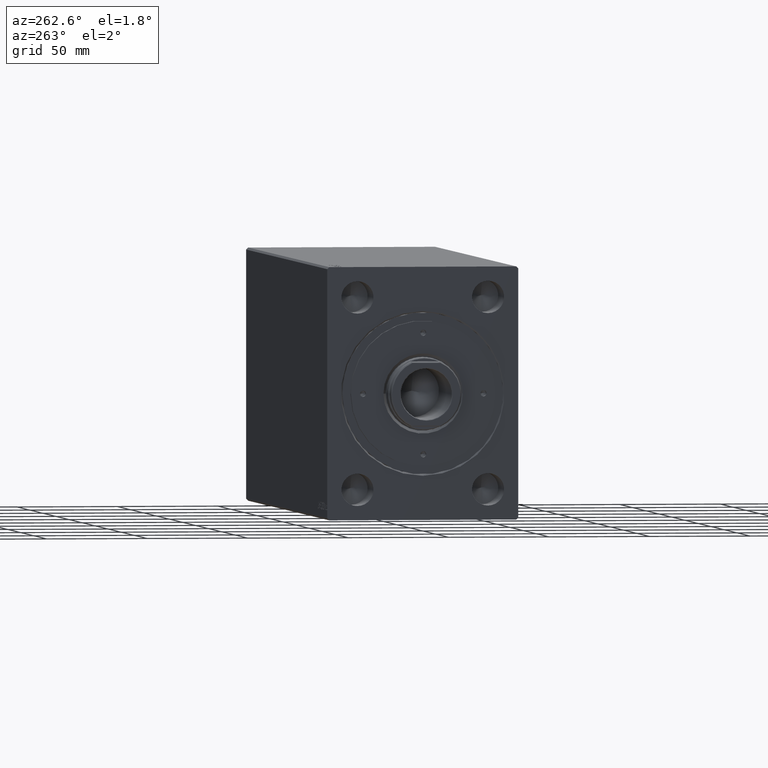
[diagram: clean part render]
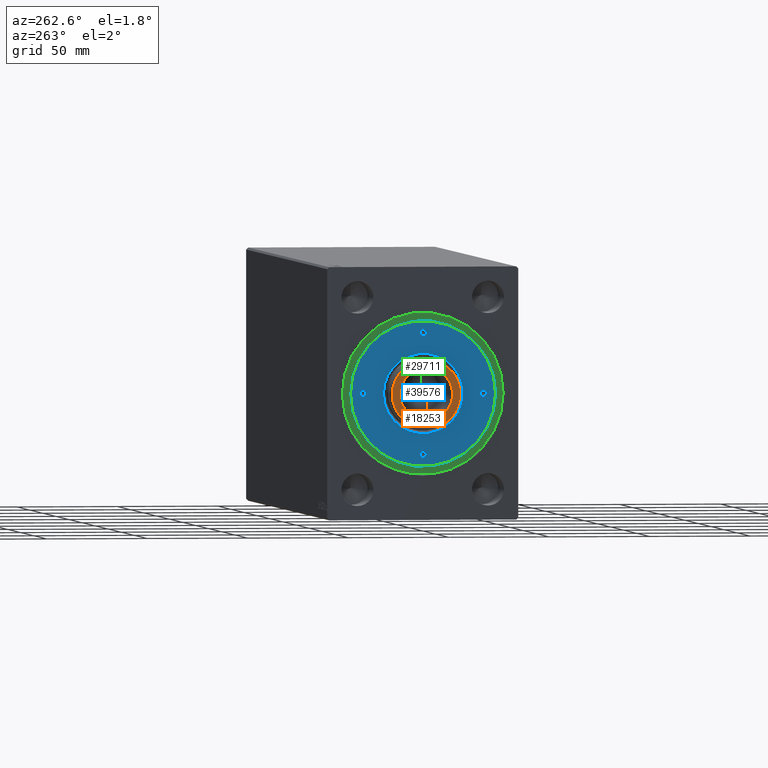
[diagram: same view with three faces highlighted in distinct colors, each labeled with its STEP entity id]
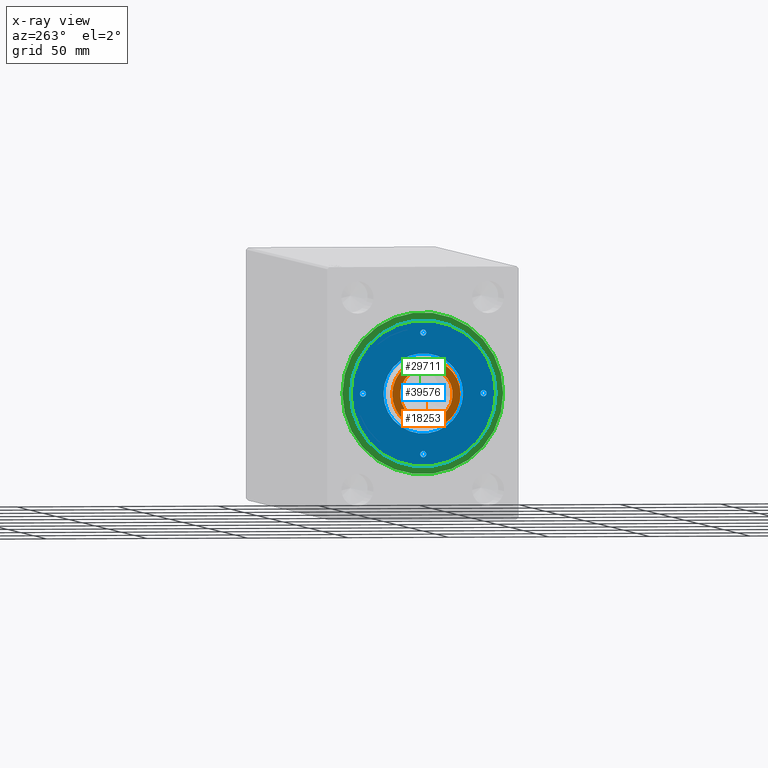
[diagram: x-ray of the same camera — body ghosted, the three highlighted faces saturated]
A machine part, auxiliary view with three faces highlighted in distinct colors.
The next image is the same camera in x-ray (body ghosted, the three faces saturated) — at least one of them is partly hidden behind the body in this view.
Their STEP definitions:

[orange] entity #18253 — the highlighted planar face has unit normal (-1, 0, 0).
#2038 = DIRECTION ( 'NONE',  ( 1.000000000000000000, 0.000000000000000000, -0.000000000000000000 ) ) ;
#2577 = CIRCLE ( 'NONE', #8262, 16.99999999999996092 ) ;
#3767 = ORIENTED_EDGE ( 'NONE', *, *, #23529, .T. ) ;
#3938 = DIRECTION ( 'NONE',  ( 1.000000000000000000, 0.000000000000000000, 0.000000000000000000 ) ) ;
#4149 = CARTESIAN_POINT ( 'NONE',  ( -13.04999999999997584, 1.598164072887293013E-15, 304.2000000000000455 ) ) ;
#4213 = EDGE_CURVE ( 'NONE', #22967, #11016, #21746, .T. ) ;
#5199 = EDGE_LOOP ( 'NONE', ( #22058, #9106, #42211, #3767 ) ) ;
#5277 = EDGE_CURVE ( 'NONE', #9134, #22473, #2577, .T. ) ;
#5333 = EDGE_CURVE ( 'NONE', #14958, #9134, #7259, .T. ) ;
#5425 = AXIS2_PLACEMENT_3D ( 'NONE', #28440, #38891, #21998 ) ;
#5576 = FACE_OUTER_BOUND ( 'NONE', #5199, .T. ) ;
#7259 = LINE ( 'NONE', #37047, #34576 ) ;
#7382 = CARTESIAN_POINT ( 'NONE',  ( 15.49999999999997158, -6.982120021884429484, 304.2000000000000455 ) ) ;
#8262 = AXIS2_PLACEMENT_3D ( 'NONE', #20826, #10810, #3938 ) ;
#8926 = FACE_BOUND ( 'NONE', #23416, .T. ) ;
#9106 = ORIENTED_EDGE ( 'NONE', *, *, #5277, .T. ) ;
#9134 = VERTEX_POINT ( 'NONE', #17526 ) ;
#10810 = DIRECTION ( 'NONE',  ( 0.000000000000000000, 0.000000000000000000, 1.000000000000000000 ) ) ;
#11016 = VERTEX_POINT ( 'NONE', #31206 ) ;
#11491 = DIRECTION ( 'NONE',  ( 1.000000000000000000, 0.000000000000000000, 0.000000000000000000 ) ) ;
#12713 = EDGE_CURVE ( 'NONE', #11016, #22967, #35401, .T. ) ;
#14275 = AXIS2_PLACEMENT_3D ( 'NONE', #42523, #32479, #2038 ) ;
#14958 = VERTEX_POINT ( 'NONE', #40128 ) ;
#16216 = AXIS2_PLACEMENT_3D ( 'NONE', #35053, #21074, #11491 ) ;
#17526 = CARTESIAN_POINT ( 'NONE',  ( -15.49999999999997158, -6.982120021884429484, 304.2000000000000455 ) ) ;
#18253 = ADVANCED_FACE ( 'NONE', ( #5576, #8926 ), #28933, .T. ) ;
#20147 = DIRECTION ( 'NONE',  ( 0.000000000000000000, -1.000000000000000000, 0.000000000000000000 ) ) ;
#20826 = CARTESIAN_POINT ( 'NONE',  ( 0.000000000000000000, 0.000000000000000000, 304.2000000000000455 ) ) ;
#21074 = DIRECTION ( 'NONE',  ( -0.000000000000000000, -0.000000000000000000, -1.000000000000000000 ) ) ;
#21557 = EDGE_CURVE ( 'NONE', #22473, #35350, #28519, .T. ) ;
#21746 = CIRCLE ( 'NONE', #5425, 13.04999999999997584 ) ;
#21998 = DIRECTION ( 'NONE',  ( 1.000000000000000000, 0.000000000000000000, 0.000000000000000000 ) ) ;
#22058 = ORIENTED_EDGE ( 'NONE', *, *, #5333, .T. ) ;
#22473 = VERTEX_POINT ( 'NONE', #7382 ) ;
#22967 = VERTEX_POINT ( 'NONE', #4149 ) ;
#23416 = EDGE_LOOP ( 'NONE', ( #30978, #29337 ) ) ;
#23529 = EDGE_CURVE ( 'NONE', #35350, #14958, #26330, .T. ) ;
#24268 = CARTESIAN_POINT ( 'NONE',  ( 0.000000000000000000, 0.000000000000000000, 304.2000000000000455 ) ) ;
#26330 = CIRCLE ( 'NONE', #30609, 16.99999999999996092 ) ;
#28440 = CARTESIAN_POINT ( 'NONE',  ( 0.000000000000000000, 0.000000000000000000, 304.2000000000000455 ) ) ;
#28519 = LINE ( 'NONE', #39403, #40483 ) ;
#28933 = PLANE ( 'NONE',  #14275 ) ;
#29337 = ORIENTED_EDGE ( 'NONE', *, *, #4213, .T. ) ;
#30487 = DIRECTION ( 'NONE',  ( 1.000000000000000000, 0.000000000000000000, 0.000000000000000000 ) ) ;
#30609 = AXIS2_PLACEMENT_3D ( 'NONE', #24268, #34926, #30487 ) ;
#30978 = ORIENTED_EDGE ( 'NONE', *, *, #12713, .T. ) ;
#31206 = CARTESIAN_POINT ( 'NONE',  ( 13.04999999999997584, 0.000000000000000000, 304.2000000000000455 ) ) ;
#32479 = DIRECTION ( 'NONE',  ( 0.000000000000000000, 0.000000000000000000, 1.000000000000000000 ) ) ;
#34576 = VECTOR ( 'NONE', #20147, 1000.000000000000000 ) ;
#34926 = DIRECTION ( 'NONE',  ( 0.000000000000000000, 0.000000000000000000, 1.000000000000000000 ) ) ;
#35053 = CARTESIAN_POINT ( 'NONE',  ( 0.000000000000000000, 0.000000000000000000, 304.2000000000000455 ) ) ;
#35350 = VERTEX_POINT ( 'NONE', #38391 ) ;
#35401 = CIRCLE ( 'NONE', #16216, 13.04999999999997584 ) ;
#37047 = CARTESIAN_POINT ( 'NONE',  ( -15.49999999999997158, -7.088723439378881608, 304.2000000000000455 ) ) ;
#38391 = CARTESIAN_POINT ( 'NONE',  ( 15.49999999999997158, 6.982120021884429484, 304.2000000000000455 ) ) ;
#38891 = DIRECTION ( 'NONE',  ( -0.000000000000000000, -0.000000000000000000, -1.000000000000000000 ) ) ;
#39403 = CARTESIAN_POINT ( 'NONE',  ( 15.49999999999997158, 7.088723439378881608, 304.2000000000000455 ) ) ;
#40128 = CARTESIAN_POINT ( 'NONE',  ( -15.49999999999997158, 6.982120021884430372, 304.2000000000000455 ) ) ;
#40483 = VECTOR ( 'NONE', #42119, 1000.000000000000000 ) ;
#42119 = DIRECTION ( 'NONE',  ( 0.000000000000000000, 1.000000000000000000, 0.000000000000000000 ) ) ;
#42211 = ORIENTED_EDGE ( 'NONE', *, *, #21557, .T. ) ;
#42523 = CARTESIAN_POINT ( 'NONE',  ( 0.000000000000000000, 0.000000000000000000, 304.2000000000000455 ) ) ;

[blue] entity #39576 — the highlighted planar face has unit normal (-1, 0, 0).
#139 = CARTESIAN_POINT ( 'NONE',  ( -30.00000000000000000, 0.000000000000000000, 13.99999999999999822 ) ) ;
#222 = VERTEX_POINT ( 'NONE', #30130 ) ;
#395 = EDGE_CURVE ( 'NONE', #14597, #20715, #5288, .T. ) ;
#437 = EDGE_CURVE ( 'NONE', #30419, #5088, #17373, .T. ) ;
#1590 = CARTESIAN_POINT ( 'NONE',  ( 0.000000000000000000, 30.00000000000000000, 13.99999999999999822 ) ) ;
#1654 = DIRECTION ( 'NONE',  ( 1.000000000000000000, 0.000000000000000000, 0.000000000000000000 ) ) ;
#1889 = DIRECTION ( 'NONE',  ( 1.000000000000000000, 0.000000000000000000, 0.000000000000000000 ) ) ;
#2609 = CIRCLE ( 'NONE', #18915, 1.499999999999996891 ) ;
#2789 = EDGE_CURVE ( 'NONE', #34170, #27147, #40870, .T. ) ;
#2872 = VERTEX_POINT ( 'NONE', #5465 ) ;
#3241 = CIRCLE ( 'NONE', #8228, 1.499999999999996891 ) ;
#4128 = FACE_BOUND ( 'NONE', #17101, .T. ) ;
#4774 = CARTESIAN_POINT ( 'NONE',  ( 0.000000000000000000, -30.00000000000000000, 13.99999999999999822 ) ) ;
#4810 = EDGE_CURVE ( 'NONE', #41311, #222, #2609, .T. ) ;
#5088 = VERTEX_POINT ( 'NONE', #21521 ) ;
#5202 = CARTESIAN_POINT ( 'NONE',  ( 0.000000000000000000, 0.000000000000000000, 13.99999999999999822 ) ) ;
#5288 = CIRCLE ( 'NONE', #42931, 1.499999999999994449 ) ;
#5465 = CARTESIAN_POINT ( 'NONE',  ( -1.499999999999996891, -30.00000000000000000, 13.99999999999999822 ) ) ;
#5606 = CIRCLE ( 'NONE', #24096, 1.499999999999997780 ) ;
#5743 = CARTESIAN_POINT ( 'NONE',  ( -19.79999999999997229, 2.424800662311756249E-15, 13.99999999999999822 ) ) ;
#6786 = FACE_OUTER_BOUND ( 'NONE', #9928, .T. ) ;
#6992 = DIRECTION ( 'NONE',  ( 1.000000000000000000, 0.000000000000000000, 0.000000000000000000 ) ) ;
#7203 = EDGE_LOOP ( 'NONE', ( #8140, #17368 ) ) ;
#8112 = DIRECTION ( 'NONE',  ( 1.000000000000000000, 0.000000000000000000, -0.000000000000000000 ) ) ;
#8140 = ORIENTED_EDGE ( 'NONE', *, *, #4810, .F. ) ;
#8228 = AXIS2_PLACEMENT_3D ( 'NONE', #1590, #11589, #18475 ) ;
#8818 = DIRECTION ( 'NONE',  ( 1.000000000000000000, 0.000000000000000000, 0.000000000000000000 ) ) ;
#9037 = DIRECTION ( 'NONE',  ( -0.000000000000000000, -0.000000000000000000, 1.000000000000000000 ) ) ;
#9077 = ORIENTED_EDGE ( 'NONE', *, *, #437, .F. ) ;
#9407 = CARTESIAN_POINT ( 'NONE',  ( -36.00000000000000000, 0.000000000000000000, 13.99999999999999822 ) ) ;
#9663 = EDGE_CURVE ( 'NONE', #5088, #30419, #5606, .T. ) ;
#9928 = EDGE_LOOP ( 'NONE', ( #20618, #29112 ) ) ;
#10399 = DIRECTION ( 'NONE',  ( 1.000000000000000000, 0.000000000000000000, 0.000000000000000000 ) ) ;
#10870 = EDGE_LOOP ( 'NONE', ( #38356, #15775 ) ) ;
#10914 = ORIENTED_EDGE ( 'NONE', *, *, #9663, .F. ) ;
#11025 = AXIS2_PLACEMENT_3D ( 'NONE', #22539, #39227, #1889 ) ;
#11589 = DIRECTION ( 'NONE',  ( -0.000000000000000000, -0.000000000000000000, 1.000000000000000000 ) ) ;
#11883 = DIRECTION ( 'NONE',  ( 0.000000000000000000, 0.000000000000000000, 1.000000000000000000 ) ) ;
#12439 = AXIS2_PLACEMENT_3D ( 'NONE', #27685, #17255, #34597 ) ;
#12989 = AXIS2_PLACEMENT_3D ( 'NONE', #36023, #25793, #25575 ) ;
#13164 = DIRECTION ( 'NONE',  ( -0.000000000000000000, -0.000000000000000000, 1.000000000000000000 ) ) ;
#13611 = CARTESIAN_POINT ( 'NONE',  ( 1.499999999999996891, 30.00000000000000000, 13.99999999999999822 ) ) ;
#13706 = DIRECTION ( 'NONE',  ( -0.000000000000000000, -0.000000000000000000, 1.000000000000000000 ) ) ;
#14597 = VERTEX_POINT ( 'NONE', #41614 ) ;
#15151 = CARTESIAN_POINT ( 'NONE',  ( 19.79999999999997229, 0.000000000000000000, 13.99999999999999822 ) ) ;
#15153 = EDGE_LOOP ( 'NONE', ( #15554, #15338 ) ) ;
#15338 = ORIENTED_EDGE ( 'NONE', *, *, #42866, .F. ) ;
#15554 = ORIENTED_EDGE ( 'NONE', *, *, #395, .F. ) ;
#15775 = ORIENTED_EDGE ( 'NONE', *, *, #29175, .T. ) ;
#16420 = VERTEX_POINT ( 'NONE', #15151 ) ;
#17101 = EDGE_LOOP ( 'NONE', ( #40051, #29385 ) ) ;
#17255 = DIRECTION ( 'NONE',  ( 0.000000000000000000, 0.000000000000000000, 1.000000000000000000 ) ) ;
#17367 = CARTESIAN_POINT ( 'NONE',  ( 0.000000000000000000, 30.00000000000000000, 13.99999999999999822 ) ) ;
#17368 = ORIENTED_EDGE ( 'NONE', *, *, #41369, .F. ) ;
#17373 = CIRCLE ( 'NONE', #11025, 1.499999999999997780 ) ;
#17593 = VERTEX_POINT ( 'NONE', #5743 ) ;
#17800 = DIRECTION ( 'NONE',  ( 1.000000000000000000, 0.000000000000000000, 0.000000000000000000 ) ) ;
#18332 = DIRECTION ( 'NONE',  ( -0.000000000000000000, -0.000000000000000000, 1.000000000000000000 ) ) ;
#18475 = DIRECTION ( 'NONE',  ( 1.000000000000000000, 0.000000000000000000, 0.000000000000000000 ) ) ;
#18878 = AXIS2_PLACEMENT_3D ( 'NONE', #23019, #9037, #8818 ) ;
#18915 = AXIS2_PLACEMENT_3D ( 'NONE', #17367, #27802, #17800 ) ;
#19505 = CIRCLE ( 'NONE', #34443, 1.499999999999996891 ) ;
#20618 = ORIENTED_EDGE ( 'NONE', *, *, #40381, .T. ) ;
#20715 = VERTEX_POINT ( 'NONE', #20992 ) ;
#20992 = CARTESIAN_POINT ( 'NONE',  ( 28.50000000000000355, 1.836970198721022785E-16, 13.99999999999999822 ) ) ;
#21023 = FACE_BOUND ( 'NONE', #7203, .T. ) ;
#21521 = CARTESIAN_POINT ( 'NONE',  ( -31.50000000000000000, 1.836970198721022785E-16, 13.99999999999999822 ) ) ;
#22539 = CARTESIAN_POINT ( 'NONE',  ( -30.00000000000000000, 0.000000000000000000, 13.99999999999999822 ) ) ;
#22900 = CIRCLE ( 'NONE', #24361, 1.499999999999996891 ) ;
#23019 = CARTESIAN_POINT ( 'NONE',  ( 30.00000000000000000, 0.000000000000000000, 13.99999999999999822 ) ) ;
#23439 = CARTESIAN_POINT ( 'NONE',  ( 0.000000000000000000, 0.000000000000000000, 13.99999999999999822 ) ) ;
#23682 = FACE_BOUND ( 'NONE', #10870, .T. ) ;
#24096 = AXIS2_PLACEMENT_3D ( 'NONE', #139, #13706, #30142 ) ;
#24361 = AXIS2_PLACEMENT_3D ( 'NONE', #30499, #13164, #40293 ) ;
#24619 = CARTESIAN_POINT ( 'NONE',  ( 0.000000000000000000, 0.000000000000000000, 13.99999999999999822 ) ) ;
#25166 = EDGE_CURVE ( 'NONE', #16420, #17593, #34924, .T. ) ;
#25449 = DIRECTION ( 'NONE',  ( 1.000000000000000000, 0.000000000000000000, 0.000000000000000000 ) ) ;
#25575 = DIRECTION ( 'NONE',  ( 1.000000000000000000, 0.000000000000000000, 0.000000000000000000 ) ) ;
#25793 = DIRECTION ( 'NONE',  ( -0.000000000000000000, -0.000000000000000000, -1.000000000000000000 ) ) ;
#25923 = AXIS2_PLACEMENT_3D ( 'NONE', #5202, #11883, #8112 ) ;
#27147 = VERTEX_POINT ( 'NONE', #9407 ) ;
#27685 = CARTESIAN_POINT ( 'NONE',  ( 0.000000000000000000, 0.000000000000000000, 13.99999999999999822 ) ) ;
#27802 = DIRECTION ( 'NONE',  ( -0.000000000000000000, -0.000000000000000000, 1.000000000000000000 ) ) ;
#28086 = AXIS2_PLACEMENT_3D ( 'NONE', #24619, #37956, #10399 ) ;
#28620 = VERTEX_POINT ( 'NONE', #37454 ) ;
#28978 = EDGE_CURVE ( 'NONE', #2872, #28620, #22900, .T. ) ;
#29112 = ORIENTED_EDGE ( 'NONE', *, *, #2789, .T. ) ;
#29175 = EDGE_CURVE ( 'NONE', #17593, #16420, #39953, .T. ) ;
#29385 = ORIENTED_EDGE ( 'NONE', *, *, #28978, .F. ) ;
#30130 = CARTESIAN_POINT ( 'NONE',  ( -1.499999999999996891, 30.00000000000000000, 13.99999999999999822 ) ) ;
#30142 = DIRECTION ( 'NONE',  ( 1.000000000000000000, 0.000000000000000000, 0.000000000000000000 ) ) ;
#30419 = VERTEX_POINT ( 'NONE', #35713 ) ;
#30499 = CARTESIAN_POINT ( 'NONE',  ( 0.000000000000000000, -30.00000000000000000, 13.99999999999999822 ) ) ;
#31235 = PLANE ( 'NONE',  #25923 ) ;
#32324 = CARTESIAN_POINT ( 'NONE',  ( 30.00000000000000000, 0.000000000000000000, 13.99999999999999822 ) ) ;
#32778 = AXIS2_PLACEMENT_3D ( 'NONE', #23439, #35153, #6992 ) ;
#33727 = CIRCLE ( 'NONE', #12439, 36.00000000000000000 ) ;
#34170 = VERTEX_POINT ( 'NONE', #41798 ) ;
#34443 = AXIS2_PLACEMENT_3D ( 'NONE', #4774, #18332, #1654 ) ;
#34587 = FACE_BOUND ( 'NONE', #15153, .T. ) ;
#34597 = DIRECTION ( 'NONE',  ( 1.000000000000000000, 0.000000000000000000, 0.000000000000000000 ) ) ;
#34924 = CIRCLE ( 'NONE', #32778, 19.79999999999997229 ) ;
#35153 = DIRECTION ( 'NONE',  ( -0.000000000000000000, -0.000000000000000000, -1.000000000000000000 ) ) ;
#35451 = DIRECTION ( 'NONE',  ( -0.000000000000000000, -0.000000000000000000, 1.000000000000000000 ) ) ;
#35713 = CARTESIAN_POINT ( 'NONE',  ( -28.50000000000000000, 0.000000000000000000, 13.99999999999999822 ) ) ;
#35925 = CIRCLE ( 'NONE', #18878, 1.499999999999994449 ) ;
#36023 = CARTESIAN_POINT ( 'NONE',  ( 0.000000000000000000, 0.000000000000000000, 13.99999999999999822 ) ) ;
#37454 = CARTESIAN_POINT ( 'NONE',  ( 1.499999999999996891, -30.00000000000000000, 13.99999999999999822 ) ) ;
#37627 = EDGE_LOOP ( 'NONE', ( #9077, #10914 ) ) ;
#37956 = DIRECTION ( 'NONE',  ( 0.000000000000000000, 0.000000000000000000, 1.000000000000000000 ) ) ;
#38356 = ORIENTED_EDGE ( 'NONE', *, *, #25166, .T. ) ;
#39227 = DIRECTION ( 'NONE',  ( -0.000000000000000000, -0.000000000000000000, 1.000000000000000000 ) ) ;
#39576 = ADVANCED_FACE ( 'NONE', ( #40597, #21023, #34587, #4128, #23682, #6786 ), #31235, .T. ) ;
#39671 = EDGE_CURVE ( 'NONE', #28620, #2872, #19505, .T. ) ;
#39953 = CIRCLE ( 'NONE', #12989, 19.79999999999997229 ) ;
#40051 = ORIENTED_EDGE ( 'NONE', *, *, #39671, .F. ) ;
#40293 = DIRECTION ( 'NONE',  ( 1.000000000000000000, 0.000000000000000000, 0.000000000000000000 ) ) ;
#40381 = EDGE_CURVE ( 'NONE', #27147, #34170, #33727, .T. ) ;
#40597 = FACE_BOUND ( 'NONE', #37627, .T. ) ;
#40870 = CIRCLE ( 'NONE', #28086, 36.00000000000000000 ) ;
#41311 = VERTEX_POINT ( 'NONE', #13611 ) ;
#41369 = EDGE_CURVE ( 'NONE', #222, #41311, #3241, .T. ) ;
#41614 = CARTESIAN_POINT ( 'NONE',  ( 31.49999999999999289, 0.000000000000000000, 13.99999999999999822 ) ) ;
#41798 = CARTESIAN_POINT ( 'NONE',  ( 36.00000000000000000, 4.408728476930470856E-15, 13.99999999999999822 ) ) ;
#42866 = EDGE_CURVE ( 'NONE', #20715, #14597, #35925, .T. ) ;
#42931 = AXIS2_PLACEMENT_3D ( 'NONE', #32324, #35451, #25449 ) ;

[green] entity #29711 — the highlighted planar face has unit normal (-1, 0, 0).
#1045 = EDGE_CURVE ( 'NONE', #18067, #39290, #8889, .T. ) ;
#4910 = CARTESIAN_POINT ( 'NONE',  ( 0.000000000000000000, 0.000000000000000000, 12.19999999999999929 ) ) ;
#6190 = EDGE_LOOP ( 'NONE', ( #10163, #20327 ) ) ;
#8257 = EDGE_CURVE ( 'NONE', #13403, #20871, #42619, .T. ) ;
#8814 = CARTESIAN_POINT ( 'NONE',  ( 40.00000000000000000, 4.898587196589413026E-15, 12.19999999999999929 ) ) ;
#8889 = CIRCLE ( 'NONE', #29444, 40.00000000000000000 ) ;
#10163 = ORIENTED_EDGE ( 'NONE', *, *, #22558, .F. ) ;
#10933 = FACE_OUTER_BOUND ( 'NONE', #36032, .T. ) ;
#12742 = DIRECTION ( 'NONE',  ( 0.000000000000000000, 0.000000000000000000, 1.000000000000000000 ) ) ;
#13403 = VERTEX_POINT ( 'NONE', #27836 ) ;
#14056 = ORIENTED_EDGE ( 'NONE', *, *, #1045, .T. ) ;
#14272 = CIRCLE ( 'NONE', #34137, 36.00000000000000000 ) ;
#14487 = DIRECTION ( 'NONE',  ( 1.000000000000000000, 0.000000000000000000, 0.000000000000000000 ) ) ;
#15138 = DIRECTION ( 'NONE',  ( 0.000000000000000000, 0.000000000000000000, 1.000000000000000000 ) ) ;
#17825 = PLANE ( 'NONE',  #37139 ) ;
#17935 = CIRCLE ( 'NONE', #42818, 40.00000000000000000 ) ;
#18040 = DIRECTION ( 'NONE',  ( 0.000000000000000000, 0.000000000000000000, 1.000000000000000000 ) ) ;
#18067 = VERTEX_POINT ( 'NONE', #41874 ) ;
#19854 = CARTESIAN_POINT ( 'NONE',  ( 0.000000000000000000, 0.000000000000000000, 12.19999999999999929 ) ) ;
#20317 = DIRECTION ( 'NONE',  ( 0.000000000000000000, 0.000000000000000000, 1.000000000000000000 ) ) ;
#20327 = ORIENTED_EDGE ( 'NONE', *, *, #8257, .F. ) ;
#20871 = VERTEX_POINT ( 'NONE', #30265 ) ;
#20943 = DIRECTION ( 'NONE',  ( 0.000000000000000000, 0.000000000000000000, 1.000000000000000000 ) ) ;
#22558 = EDGE_CURVE ( 'NONE', #20871, #13403, #14272, .T. ) ;
#24499 = CARTESIAN_POINT ( 'NONE',  ( 0.000000000000000000, 0.000000000000000000, 12.19999999999999929 ) ) ;
#27836 = CARTESIAN_POINT ( 'NONE',  ( 36.00000000000000000, 4.408728476930470856E-15, 12.19999999999999929 ) ) ;
#28133 = EDGE_CURVE ( 'NONE', #39290, #18067, #17935, .T. ) ;
#28249 = CARTESIAN_POINT ( 'NONE',  ( 0.000000000000000000, 0.000000000000000000, 12.19999999999999929 ) ) ;
#29092 = AXIS2_PLACEMENT_3D ( 'NONE', #19854, #12742, #39433 ) ;
#29444 = AXIS2_PLACEMENT_3D ( 'NONE', #28249, #20943, #14487 ) ;
#29711 = ADVANCED_FACE ( 'NONE', ( #41426, #10933 ), #17825, .T. ) ;
#30081 = DIRECTION ( 'NONE',  ( 1.000000000000000000, 0.000000000000000000, 0.000000000000000000 ) ) ;
#30265 = CARTESIAN_POINT ( 'NONE',  ( -36.00000000000000000, 0.000000000000000000, 12.19999999999999929 ) ) ;
#31223 = ORIENTED_EDGE ( 'NONE', *, *, #28133, .T. ) ;
#33199 = CARTESIAN_POINT ( 'NONE',  ( 0.000000000000000000, 0.000000000000000000, 12.19999999999999929 ) ) ;
#34137 = AXIS2_PLACEMENT_3D ( 'NONE', #4910, #15138, #42073 ) ;
#36032 = EDGE_LOOP ( 'NONE', ( #14056, #31223 ) ) ;
#37139 = AXIS2_PLACEMENT_3D ( 'NONE', #24499, #18040, #41860 ) ;
#39290 = VERTEX_POINT ( 'NONE', #8814 ) ;
#39433 = DIRECTION ( 'NONE',  ( 1.000000000000000000, 0.000000000000000000, 0.000000000000000000 ) ) ;
#41426 = FACE_BOUND ( 'NONE', #6190, .T. ) ;
#41860 = DIRECTION ( 'NONE',  ( 1.000000000000000000, 0.000000000000000000, -0.000000000000000000 ) ) ;
#41874 = CARTESIAN_POINT ( 'NONE',  ( -40.00000000000000000, 0.000000000000000000, 12.19999999999999929 ) ) ;
#42073 = DIRECTION ( 'NONE',  ( 1.000000000000000000, 0.000000000000000000, 0.000000000000000000 ) ) ;
#42619 = CIRCLE ( 'NONE', #29092, 36.00000000000000000 ) ;
#42818 = AXIS2_PLACEMENT_3D ( 'NONE', #33199, #20317, #30081 ) ;